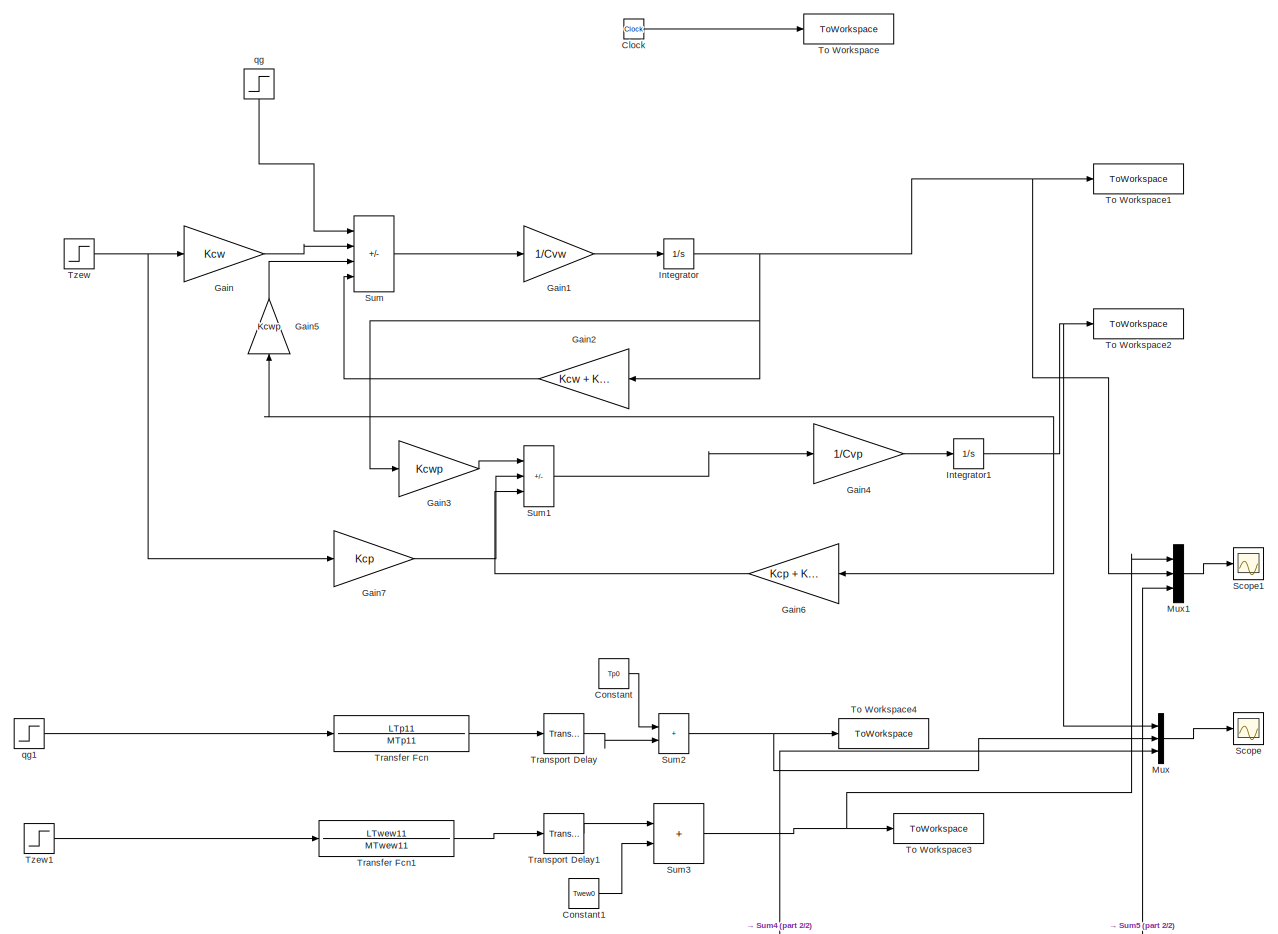
[diagram: root canvas - part 1/2, full width, middle band]
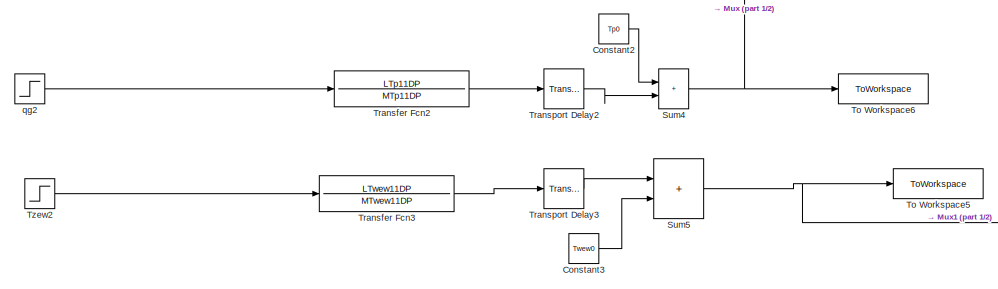
[diagram: root canvas - part 2/2, full width, bottom band]
MODEL slx_f9db9c2a5529
KIND model
CONFIG AbsTol = auto
CONFIG EnableMultiTasking = off
CONFIG FixedStep = auto
CONFIG MaxStep = 0.1
CONFIG MinStep = auto
CONFIG RelTol = 1e-3
CONFIG SampleTimeConstraint = Unconstrained
CONFIG SolverName = VariableStepAuto
CONFIG StartTime = 0.0
CONFIG StopTime = t_simulation
BLOCK [Clock] Clock
BLOCK [Constant] Constant
  Value = Tp0
BLOCK [Constant] Constant1
  Value = Twew0
BLOCK [Constant] Constant2
  Value = Tp0
BLOCK [Constant] Constant3
  Value = Twew0
BLOCK [Gain] Gain
  Gain = Kcw
BLOCK [Gain] Gain1
  Gain = 1/Cvw
BLOCK [Gain] Gain2
  Gain = Kcw + Kcwp
  NameLocation = top
BLOCK [Gain] Gain3
  Gain = Kcwp
BLOCK [Gain] Gain4
  Gain = 1/Cvp
BLOCK [Gain] Gain5
  Gain = Kcwp
  NameLocation = right
BLOCK [Gain] Gain6
  Gain = Kcp + Kcwp
  NameLocation = top
BLOCK [Gain] Gain7
  Gain = Kcp
BLOCK [Integrator] Integrator
  InitialCondition = Twew0
BLOCK [Integrator] Integrator1
  InitialCondition = Tp0
BLOCK [Mux] Mux
  DisplayOption = bar
  Inputs = 3
BLOCK [Mux] Mux1
  DisplayOption = bar
  Inputs = 3
BLOCK [Scope] Scope
  Floating = off
  NumInputPorts = 1
  ScopeSpecificationString = Simulink.scopes.TimeScopeBlockCfg('CurrentConfiguration', extmgr.ConfigurationSet(extmgr.Configuration('Core','General UI',true),extmgr.Configuration('Core','Source UI',true),extmgr.Configuration('Sources','WiredSimulink',true),extmgr.Configuration('Visuals','Time Domain',true,'SerializedDisplays',{struct('MinYLimReal','9.62506','MaxYLimReal','13.3745','YLabelReal','','MinYLimMag','9.62506','MaxYL...<+1367ch>
BLOCK [Scope] Scope1
  Floating = off
  NumInputPorts = 1
  ScopeSpecificationString = Simulink.scopes.TimeScopeBlockCfg('CurrentConfiguration', extmgr.ConfigurationSet(extmgr.Configuration('Core','General UI',true),extmgr.Configuration('Core','Source UI',true),extmgr.Configuration('Sources','WiredSimulink',true,'DataLoggingVariableName','ScopeData1'),extmgr.Configuration('Visuals','Time Domain',true,'SerializedDisplays',{struct('MinYLimReal','19.5','MaxYLimReal','24.5','YLabelReal'...<+1384ch>
BLOCK [Sum] Sum
  IconShape = rectangular
  Inputs = +++-
BLOCK [Sum] Sum1
  IconShape = rectangular
  Inputs = |++-
BLOCK [Sum] Sum2
  IconShape = rectangular
  Inputs = |++
BLOCK [Sum] Sum3
  IconShape = rectangular
  Inputs = |++
BLOCK [Sum] Sum4
  IconShape = rectangular
  Inputs = |++
BLOCK [Sum] Sum5
  IconShape = rectangular
  Inputs = |++
BLOCK [ToWorkspace] To Workspace
  FixptAsFi = on
  MaxDataPoints = inf
  SampleTime = -1
  VariableName = t
BLOCK [ToWorkspace] To Workspace1
  FixptAsFi = on
  MaxDataPoints = inf
  SampleTime = -1
  VariableName = Twew
BLOCK [ToWorkspace] To Workspace2
  FixptAsFi = on
  MaxDataPoints = inf
  SampleTime = -1
  VariableName = Tp
BLOCK [ToWorkspace] To Workspace3
  FixptAsFi = on
  MaxDataPoints = inf
  SampleTime = -1
  VariableName = TwewS
BLOCK [ToWorkspace] To Workspace4
  FixptAsFi = on
  MaxDataPoints = inf
  SampleTime = -1
  VariableName = TpS
BLOCK [ToWorkspace] To Workspace5
  FixptAsFi = on
  MaxDataPoints = inf
  SampleTime = -1
  VariableName = TwewDP
BLOCK [ToWorkspace] To Workspace6
  FixptAsFi = on
  MaxDataPoints = inf
  SampleTime = -1
  VariableName = TpDP
BLOCK [TransferFcn] Transfer Fcn
  Denominator = MTp11
  Numerator = LTp11
BLOCK [TransferFcn] Transfer Fcn1
  Denominator = MTwew11
  Numerator = LTwew11
BLOCK [TransferFcn] Transfer Fcn2
  Denominator = MTp11DP
  Numerator = LTp11DP
BLOCK [TransferFcn] Transfer Fcn3
  Denominator = MTwew11DP
  Numerator = LTwew11DP
BLOCK [TransportDelay] Transport Delay
  DelayTime = 0
BLOCK [TransportDelay] Transport Delay1
  DelayTime = 0
BLOCK [TransportDelay] Transport Delay2
  DelayTime = 0
BLOCK [TransportDelay] Transport Delay3
  DelayTime = 0
BLOCK [Step] Tzew
  After = Tzew0 + dTzew
  Before = Tzew0
  SampleTime = 0
  Time = t0
BLOCK [Step] Tzew1
  After = dgq
  SampleTime = 0
  Time = t0
BLOCK [Step] Tzew2
  After = dgq
  SampleTime = 0
  Time = t0
BLOCK [Step] qg
  After = qg0 + dgq
  Before = qg0
  NameLocation = left
  SampleTime = 0
  Time = t0
BLOCK [Step] qg1
  After = dgq
  SampleTime = 0
  Time = t0
BLOCK [Step] qg2
  After = dgq
  SampleTime = 0
  Time = t0
LINE Clock:1 -> To Workspace:1
LINE Constant1:1 -> Sum3:2
LINE Constant2:1 -> Sum4:1
LINE Constant3:1 -> Sum5:2
LINE Constant:1 -> Sum2:1
LINE Gain1:1 -> Integrator:1
LINE Gain2:1 -> Sum:4
LINE Gain3:1 -> Sum1:1
LINE Gain4:1 -> Integrator1:1
LINE Gain5:1 -> Sum:3
LINE Gain6:1 -> Sum1:3
LINE Gain7:1 -> Sum1:2
LINE Gain:1 -> Sum:2
NET Integrator1:1 -> Gain5:1, Gain6:1, Mux:1, To Workspace2:1
NET Integrator:1 -> Gain2:1, Gain3:1, Mux1:2, To Workspace1:1
LINE Mux1:1 -> Scope1:1
LINE Mux:1 -> Scope:1
LINE Sum1:1 -> Gain4:1
NET Sum2:1 -> Mux:2, To Workspace4:1
NET Sum3:1 -> Mux1:1, To Workspace3:1
NET Sum4:1 -> Mux:3, To Workspace6:1
NET Sum5:1 -> Mux1:3, To Workspace5:1
LINE Sum:1 -> Gain1:1
LINE Transfer Fcn1:1 -> Transport Delay1:1
LINE Transfer Fcn2:1 -> Transport Delay2:1
LINE Transfer Fcn3:1 -> Transport Delay3:1
LINE Transfer Fcn:1 -> Transport Delay:1
LINE Transport Delay1:1 -> Sum3:1
LINE Transport Delay2:1 -> Sum4:2
LINE Transport Delay3:1 -> Sum5:1
LINE Transport Delay:1 -> Sum2:2
LINE Tzew1:1 -> Transfer Fcn1:1
LINE Tzew2:1 -> Transfer Fcn3:1
NET Tzew:1 -> Gain7:1, Gain:1
LINE qg1:1 -> Transfer Fcn:1
LINE qg2:1 -> Transfer Fcn2:1
LINE qg:1 -> Sum:1
note: NET lines group one-source signal fan-out (src -> all destinations, sorted); 1:1 wires keep LINE
